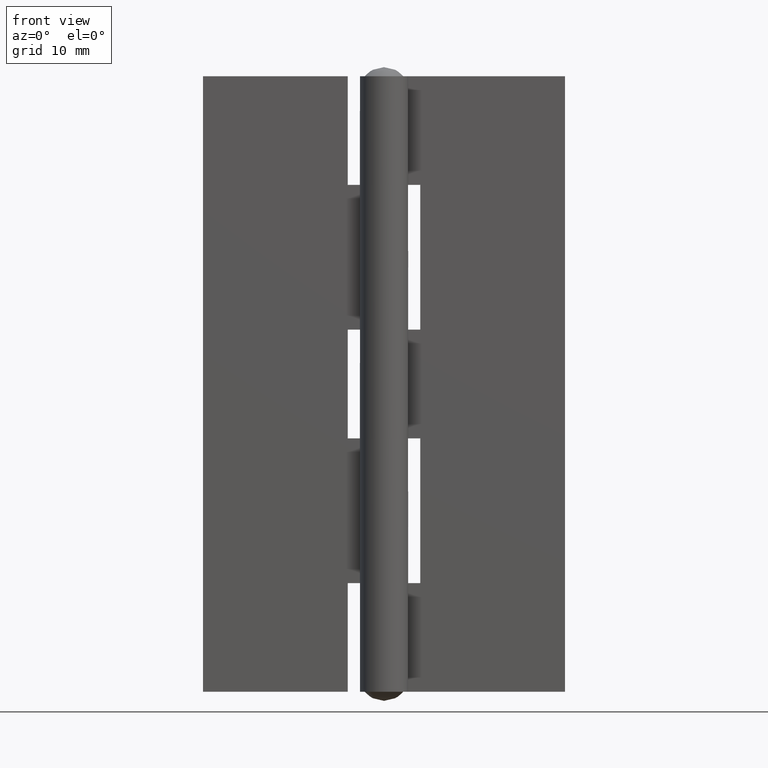
[diagram: clean part render]
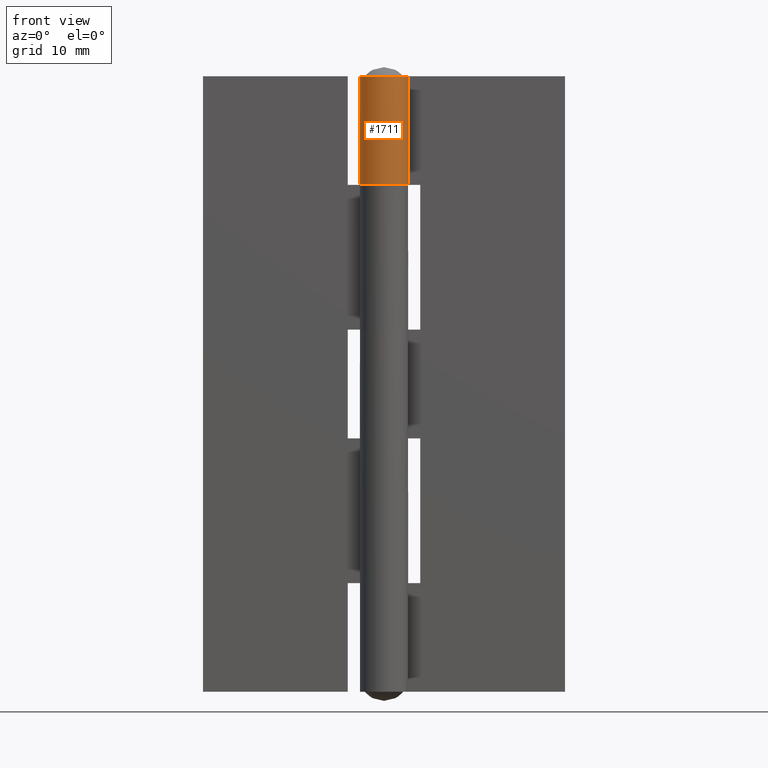
[diagram: same view with one face highlighted and labeled with its STEP entity id]
A machine part, front view. The second image highlights one B-rep face of the part: STEP entity #1711.
In plain terms, the highlighted face is a freeform B-spline surface patch.
Its self-contained STEP definition (entity closure, byte-faithful):
#1282=CARTESIAN_POINT('',(1.431147E-014,2.0,42.0));
#1283=VERTEX_POINT('',#1282);
#1296=CARTESIAN_POINT('',(1.636306817195370,1.150000000000000,42.0));
#1297=VERTEX_POINT('',#1296);
#1303=CARTESIAN_POINT('',(1.431147E-014,2.0,42.0));
#1304=CARTESIAN_POINT('',(-0.221889482768808,2.000148630351799,41.999999999999972));
#1305=CARTESIAN_POINT('',(-0.596201038693656,1.937021170872924,41.999999999999993));
#1306=CARTESIAN_POINT('',(-1.024099937244358,1.731767714618256,42.000000000000171));
#1307=CARTESIAN_POINT('',(-1.315254659905377,1.517472017544006,41.999999999999673));
#1308=CARTESIAN_POINT('',(-1.550218240649923,1.280133665083264,42.000000000000647));
#1309=CARTESIAN_POINT('',(-1.795334814545913,0.924687907716517,41.999999999999382));
#1310=CARTESIAN_POINT('',(-1.980170112207822,0.440189165596485,42.000000000000249));
#1311=CARTESIAN_POINT('',(-2.016974756830170,-0.062975352588956,41.999999999999943));
#1312=CARTESIAN_POINT('',(-1.939297007635645,-0.557905762425624,42.000000000000021));
#1313=CARTESIAN_POINT('',(-1.786897232422709,-0.934646921571491,42.000000000000043));
#1314=CARTESIAN_POINT('',(-1.558179338156435,-1.266755634243877,41.999999999999929));
#1315=CARTESIAN_POINT('',(-1.347527833867330,-1.488892986854663,42.000000000000043));
#1316=CARTESIAN_POINT('',(-1.072068480344743,-1.700883612036630,42.000000000000021));
#1317=CARTESIAN_POINT('',(-0.738026499920608,-1.874417766235401,41.999999999999993));
#1318=CARTESIAN_POINT('',(-0.361909143204200,-1.978938429168745,42.000000000000021));
#1319=CARTESIAN_POINT('',(0.081829944884459,-2.016311352741924,42.000000000000007));
#1320=CARTESIAN_POINT('',(0.553351797259322,-1.947518190322949,41.999999999999993));
#1321=CARTESIAN_POINT('',(0.988097989102634,-1.755704077736920,42.000000000000007));
#1322=CARTESIAN_POINT('',(1.349638696265779,-1.495767772502432,42.000000000000021));
#1323=CARTESIAN_POINT('',(1.669901707516124,-1.144754536258156,41.999999999999957));
#1324=CARTESIAN_POINT('',(1.897930685631048,-0.694704720711839,42.000000000000142));
#1325=CARTESIAN_POINT('',(2.001068730771053,-0.232000938644751,41.999999999999510));
#1326=CARTESIAN_POINT('',(2.005683626948752,0.172308611639484,42.000000000001201));
#1327=CARTESIAN_POINT('',(1.915459909958130,0.651380559707601,41.999999999998153));
#1328=CARTESIAN_POINT('',(1.764019636094770,0.968545108144253,42.000000000001648));
#1329=CARTESIAN_POINT('',(1.636306817195370,1.150000000000000,42.0));
#1330=B_SPLINE_CURVE_WITH_KNOTS('',3,(#1303,#1304,#1305,#1306,#1307,#1308,#1309,#1310,#1311,#1312,#1313,#1314,#1315,#1316,#1317,#1318,#1319,#1320,#1321,#1322,#1323,#1324,#1325,#1326,#1327,#1328,#1329),.UNSPECIFIED.,.F.,.U.,(4,1,1,1,1,1,1,1,1,1,1,1,1,1,1,1,1,1,1,1,1,1,1,1,4),(0.000000201474082,0.665619977119004,1.123256379161107,1.414478936752039,1.747304870933810,2.121737957983793,2.704141026150870,3.286565640552345,3.619397250422511,4.201835316415870,4.493059591542143,4.825885678588235,5.117104416916953,5.533076856447536,5.949103628246338,6.281932212108861,6.864376983503563,7.363620398992966,7.696444078620447,8.195620997142729,8.778061570655325,9.194097927021989,9.610128428154866,9.984561182065727,10.650178224110171),.UNSPECIFIED.);
#1331=EDGE_CURVE('',#1283,#1297,#1330,.T.);
#1522=CARTESIAN_POINT('',(1.636306817195370,1.150000000000000,51.0));
#1523=VERTEX_POINT('',#1522);
#1524=CARTESIAN_POINT('',(1.421085E-014,2.0,51.0));
#1525=VERTEX_POINT('',#1524);
#1526=CARTESIAN_POINT('',(1.636306817195370,1.150000000000000,51.0));
#1527=CARTESIAN_POINT('',(1.772030644030704,0.957219726845111,50.999999999999943));
#1528=CARTESIAN_POINT('',(1.938200459956739,0.599591171326918,51.000000000000057));
#1529=CARTESIAN_POINT('',(2.010564197510139,0.102329407568072,51.000000000000021));
#1530=CARTESIAN_POINT('',(1.989905465098549,-0.286761658638467,50.999999999999822));
#1531=CARTESIAN_POINT('',(1.910577288018288,-0.625814746829622,51.000000000000220));
#1532=CARTESIAN_POINT('',(1.761979952262908,-0.970898152143397,50.999999999999837));
#1533=CARTESIAN_POINT('',(1.574743370253853,-1.248203424164021,51.000000000000149));
#1534=CARTESIAN_POINT('',(1.287550083159814,-1.550306746908144,50.999999999999680));
#1535=CARTESIAN_POINT('',(0.918072780202809,-1.804477836402876,51.000000000001002));
#1536=CARTESIAN_POINT('',(0.455621165249709,-1.963916582040718,50.999999999999119));
#1537=CARTESIAN_POINT('',(0.081980883469885,-2.006559117851845,51.000000000000682));
#1538=CARTESIAN_POINT('',(-0.251188480332572,-1.992455105281536,50.999999999999538));
#1539=CARTESIAN_POINT('',(-0.647193197423252,-1.912962153638044,51.000000000000263));
#1540=CARTESIAN_POINT('',(-1.116921498532168,-1.693314069974687,50.999999999999943));
#1541=CARTESIAN_POINT('',(-1.535114687891665,-1.319984708632862,51.000000000000007));
#1542=CARTESIAN_POINT('',(-1.792166959729691,-0.920336804849647,51.000000000000007));
#1543=CARTESIAN_POINT('',(-1.950557879059902,-0.504147046498638,50.999999999999993));
#1544=CARTESIAN_POINT('',(-2.024307981431308,-0.034740134744279,50.999999999999993));
#1545=CARTESIAN_POINT('',(-1.963301792256971,0.494309021067546,51.000000000000043));
#1546=CARTESIAN_POINT('',(-1.763774268600056,0.986470742644268,50.999999999999943));
#1547=CARTESIAN_POINT('',(-1.498548954387174,1.346555452675735,51.000000000000277));
#1548=CARTESIAN_POINT('',(-1.176520217017140,1.633602723078011,50.999999999999083));
#1549=CARTESIAN_POINT('',(-0.851430633900010,1.824260403961272,51.000000000002267));
#1550=CARTESIAN_POINT('',(-0.443716778025275,1.965174841756567,50.999999999995772));
#1551=CARTESIAN_POINT('',(-0.166402565433718,2.000046826697276,51.000000000002522));
#1552=CARTESIAN_POINT('',(1.421085E-014,2.0,51.0));
#1553=B_SPLINE_CURVE_WITH_KNOTS('',3,(#1526,#1527,#1528,#1529,#1530,#1531,#1532,#1533,#1534,#1535,#1536,#1537,#1538,#1539,#1540,#1541,#1542,#1543,#1544,#1545,#1546,#1547,#1548,#1549,#1550,#1551,#1552),.UNSPECIFIED.,.F.,.U.,(4,1,1,1,1,1,1,1,1,1,1,1,1,1,1,1,1,1,1,1,1,1,1,1,4),(0.000000201473872,0.707223280285847,1.164860082421063,1.497682879292379,1.872116587359106,2.204944293009346,2.620951745357624,2.870536853037740,3.452982707128592,3.952214970633465,4.326645974450156,4.576266128986873,4.950695335371667,5.533076856447308,6.115517430285962,6.614759586974349,6.947584287742810,7.446826949654797,8.029227655604666,8.528441217913988,9.027683879653484,9.360508580647455,9.818147122376775,10.150974279136211,10.650178224110171),.UNSPECIFIED.);
#1554=EDGE_CURVE('',#1523,#1525,#1553,.T.);
#1648=CARTESIAN_POINT('',(1.636306817195370,1.150000000000000,51.0));
#1649=CARTESIAN_POINT('',(1.636306817195370,1.150000000000000,42.0));
#1650=QUASI_UNIFORM_CURVE('',1,(#1648,#1649),.UNSPECIFIED.,.F.,.U.);
#1651=EDGE_CURVE('',#1523,#1297,#1650,.T.);
#1666=CARTESIAN_POINT('',(1.421085E-014,2.0,51.0));
#1667=CARTESIAN_POINT('',(1.431147E-014,2.0,42.0));
#1668=QUASI_UNIFORM_CURVE('',1,(#1666,#1667),.UNSPECIFIED.,.F.,.U.);
#1669=EDGE_CURVE('',#1525,#1283,#1668,.T.);
#1683=CARTESIAN_POINT('',(0.052353896615763,1.999314649951114,51.225000000000009));
#1684=CARTESIAN_POINT('',(0.052353896615763,1.999314649951114,41.769374999999997));
#1685=CARTESIAN_POINT('',(-2.476191716467419,2.065526947059425,51.225000000000016));
#1686=CARTESIAN_POINT('',(-2.476191716467419,2.065526947059425,41.769375000000004));
#1687=CARTESIAN_POINT('',(-1.957496504264814,-0.410130998329772,51.225000000000009));
#1688=CARTESIAN_POINT('',(-1.957496504264814,-0.410130998329772,41.769374999999997));
#1689=CARTESIAN_POINT('',(-1.438801292062208,-2.885788943718969,51.225000000000016));
#1690=CARTESIAN_POINT('',(-1.438801292062208,-2.885788943718969,41.769375000000004));
#1691=CARTESIAN_POINT('',(0.850505624996897,-1.810149215354540,51.225000000000009));
#1692=CARTESIAN_POINT('',(0.850505624996897,-1.810149215354540,41.769374999999997));
#1693=CARTESIAN_POINT('',(3.139812542056002,-0.734509486990112,51.225000000000016));
#1694=CARTESIAN_POINT('',(3.139812542056002,-0.734509486990112,41.769375000000004));
#1695=CARTESIAN_POINT('',(1.565216313704843,1.245029273275236,51.225000000000009));
#1696=CARTESIAN_POINT('',(1.565216313704843,1.245029273275236,41.769374999999997));
#1704=(BOUNDED_SURFACE()B_SPLINE_SURFACE(1,2,((#1683,#1685,#1687,#1689,#1691,#1693,#1695),(#1684,#1686,#1688,#1690,#1692,#1694,#1696)),.UNSPECIFIED.,.F.,.F.,.U.)B_SPLINE_SURFACE_WITH_KNOTS((2,2),(3,2,2,3),(0.0,9.455625000000012),(0.0,3.873094592221599,7.746189184443198,11.619283776664799),.UNSPECIFIED.)GEOMETRIC_REPRESENTATION_ITEM()RATIONAL_B_SPLINE_SURFACE(((1.0,0.620235491268260,1.0,0.620235491268260,1.0,0.620235491268260,1.0),(1.0,0.620235491268260,1.0,0.620235491268260,1.0,0.620235491268260,1.0)))REPRESENTATION_ITEM('')SURFACE());
#1705=ORIENTED_EDGE('',*,*,#1669,.T.);
#1706=ORIENTED_EDGE('',*,*,#1331,.T.);
#1707=ORIENTED_EDGE('',*,*,#1651,.F.);
#1708=ORIENTED_EDGE('',*,*,#1554,.T.);
#1709=EDGE_LOOP('',(#1705,#1706,#1707,#1708));
#1710=FACE_OUTER_BOUND('',#1709,.T.);
#1711=ADVANCED_FACE('',(#1710),#1704,.T.);